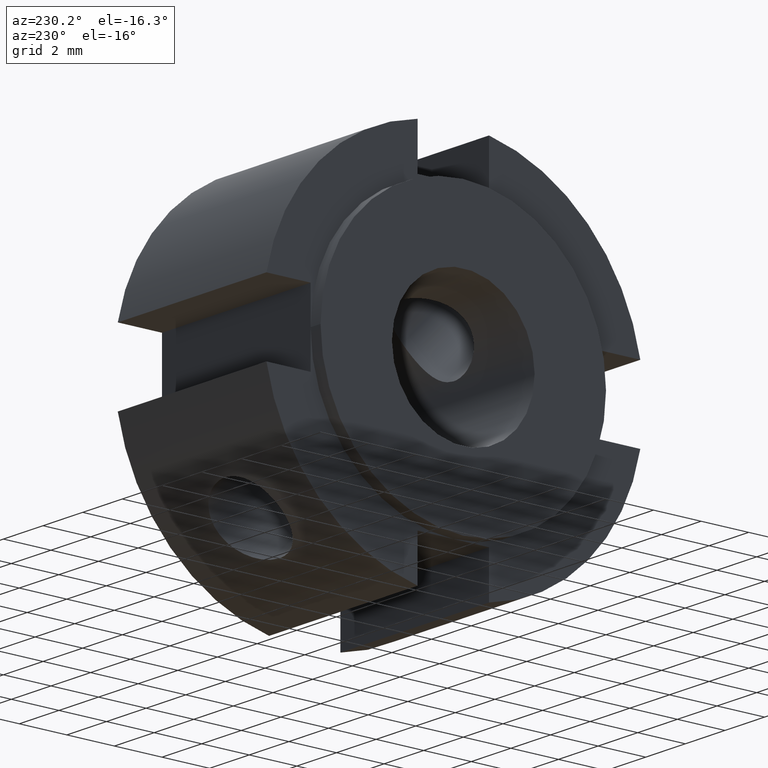
[diagram: clean part render]
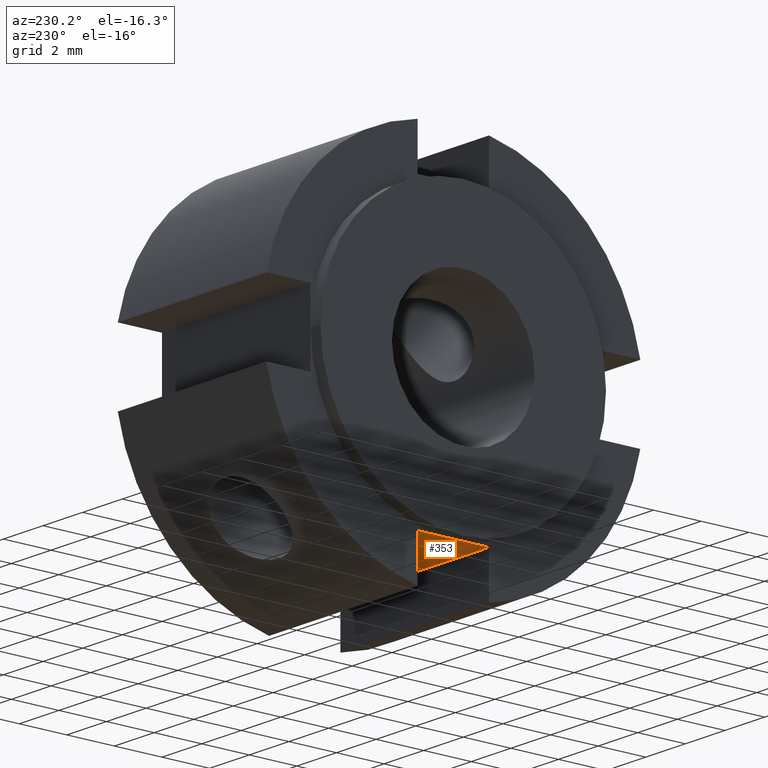
[diagram: same view with one face highlighted and labeled with its STEP entity id]
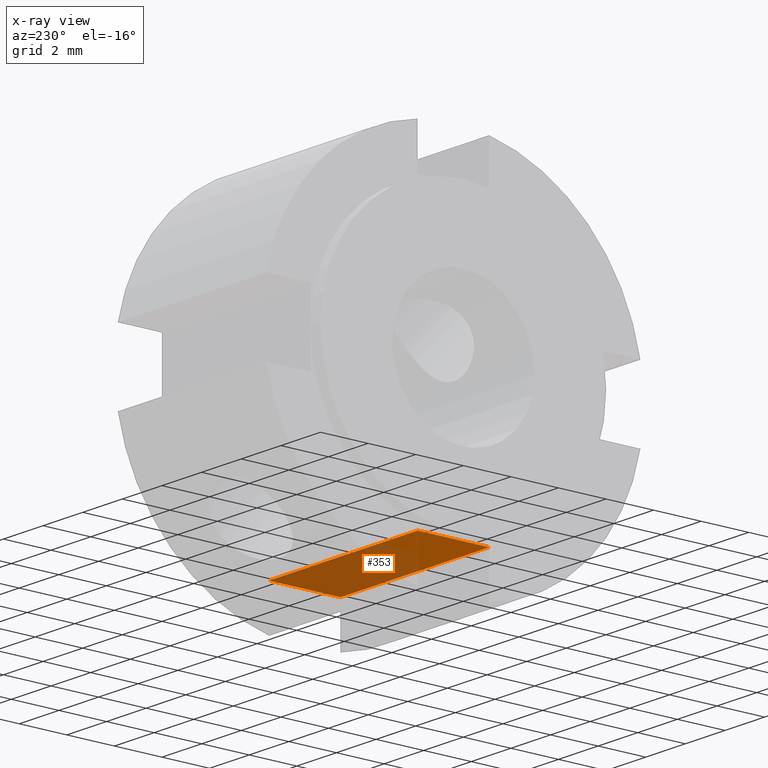
[diagram: x-ray of the same camera — body ghosted, the highlighted face saturated]
A machine part, auxiliary view. The second image highlights one B-rep face of the part: STEP entity #353.
The next image is the same camera in x-ray: the body ghosted, the highlighted face saturated — about 69% of this face is hidden behind the body in this view.
In plain terms, the highlighted planar face has unit normal (0, 0, 1).
Its self-contained STEP definition (entity closure, byte-faithful):
#249=CARTESIAN_POINT('',(0.500000000000000,-1.500000000000002,-5.999999999999996));
#250=VERTEX_POINT('',#249);
#259=CARTESIAN_POINT('',(7.999999999999998,-1.500000000000002,-5.999999999999996));
#260=VERTEX_POINT('',#259);
#261=CARTESIAN_POINT('',(7.999999999999998,-1.500000000000002,-5.999999999999996));
#262=DIRECTION('',(-1.0,0.0,0.0));
#263=VECTOR('',#262,7.499999999999998);
#264=LINE('',#261,#263);
#265=EDGE_CURVE('',#260,#250,#264,.T.);
#291=CARTESIAN_POINT('',(0.500000000000000,1.499999999999999,-5.999999999999996));
#292=VERTEX_POINT('',#291);
#307=CARTESIAN_POINT('',(7.999999999999998,1.499999999999999,-5.999999999999996));
#308=VERTEX_POINT('',#307);
#315=CARTESIAN_POINT('',(7.999999999999998,1.499999999999999,-5.999999999999996));
#316=DIRECTION('',(-1.0,0.0,0.0));
#317=VECTOR('',#316,7.499999999999998);
#318=LINE('',#315,#317);
#319=EDGE_CURVE('',#308,#292,#318,.T.);
#324=CARTESIAN_POINT('',(7.999999999999998,1.499999999999999,-5.999999999999996));
#325=DIRECTION('',(0.0,0.0,1.0));
#326=DIRECTION('',(0.0,-1.0,0.0));
#327=AXIS2_PLACEMENT_3D('',#324,#325,#326);
#328=PLANE('',#327);
#329=CARTESIAN_POINT('',(0.500000000000000,-1.110223E-015,-5.999999999999996));
#330=VERTEX_POINT('',#329);
#331=CARTESIAN_POINT('',(0.500000000000000,1.499999999999999,-5.999999999999996));
#332=DIRECTION('',(0.0,-1.0,0.0));
#333=VECTOR('',#332,1.500000000000001);
#334=LINE('',#331,#333);
#335=EDGE_CURVE('',#292,#330,#334,.T.);
#336=ORIENTED_EDGE('',*,*,#335,.F.);
#337=ORIENTED_EDGE('',*,*,#319,.F.);
#338=CARTESIAN_POINT('',(7.999999999999998,-1.500000000000002,-5.999999999999996));
#339=DIRECTION('',(0.0,1.0,0.0));
#340=VECTOR('',#339,3.000000000000001);
#341=LINE('',#338,#340);
#342=EDGE_CURVE('',#260,#308,#341,.T.);
#343=ORIENTED_EDGE('',*,*,#342,.F.);
#344=ORIENTED_EDGE('',*,*,#265,.T.);
#345=CARTESIAN_POINT('',(0.500000000000000,-1.776357E-015,-5.999999999999996));
#346=DIRECTION('',(0.0,-1.0,0.0));
#347=VECTOR('',#346,1.500000000000001);
#348=LINE('',#345,#347);
#349=EDGE_CURVE('',#330,#250,#348,.T.);
#350=ORIENTED_EDGE('',*,*,#349,.F.);
#351=EDGE_LOOP('',(#336,#337,#343,#344,#350));
#352=FACE_OUTER_BOUND('',#351,.T.);
#353=ADVANCED_FACE('',(#352),#328,.F.);